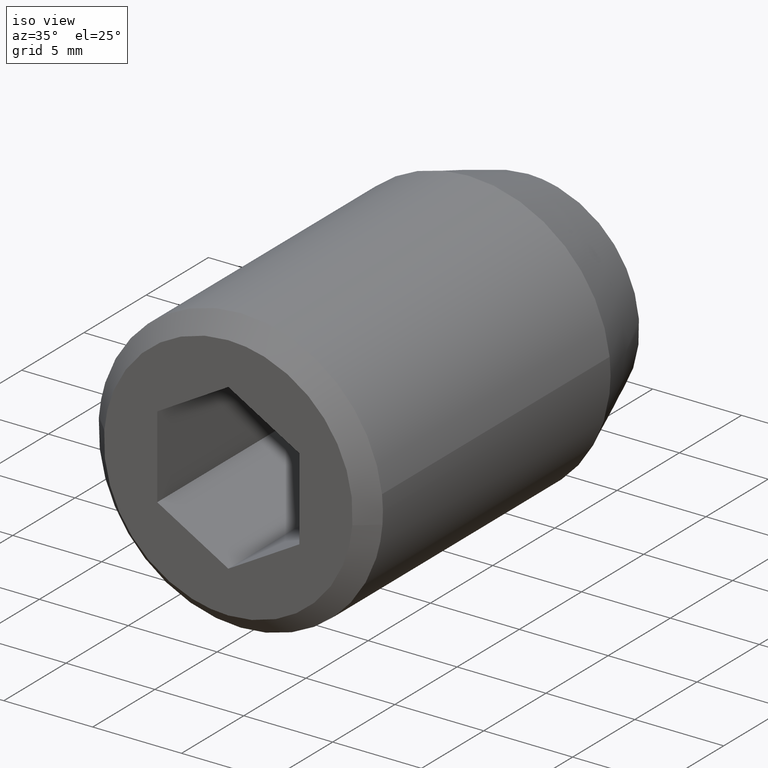
[diagram: clean part render]
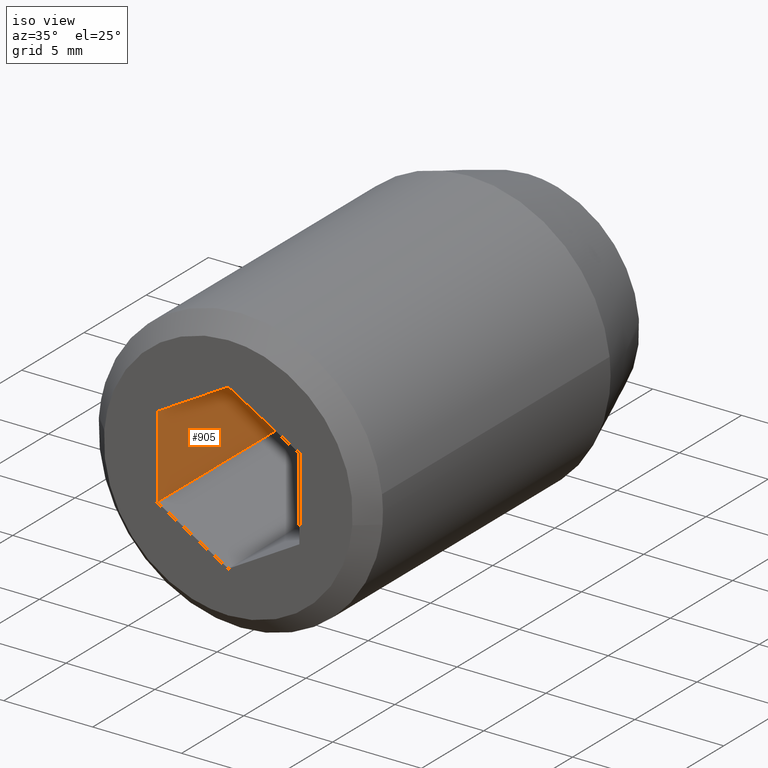
[diagram: same view with one face highlighted and labeled with its STEP entity id]
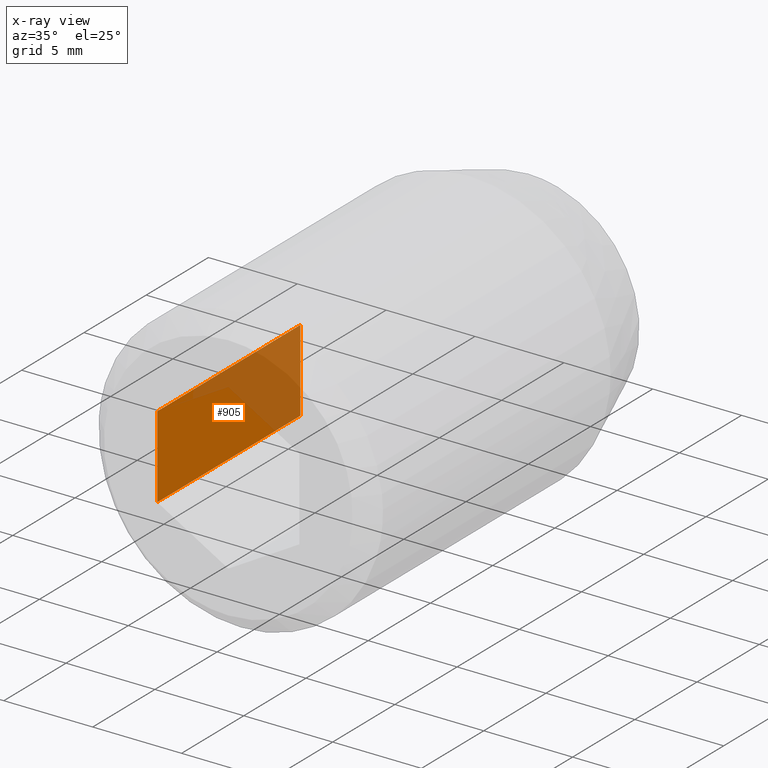
[diagram: x-ray of the same camera — body ghosted, the highlighted face saturated]
A machine part, iso view. The second image highlights one B-rep face of the part: STEP entity #905.
The next image is the same camera in x-ray: the body ghosted, the highlighted face saturated — about 41% of this face is hidden behind the body in this view.
In plain terms, the highlighted face is a freeform B-spline surface patch.
Its self-contained STEP definition (entity closure, byte-faithful):
#729=CARTESIAN_POINT('',(-4.0,-12.600000000000000,2.309401000000000));
#730=VERTEX_POINT('',#729);
#731=CARTESIAN_POINT('',(-4.0,-12.600000000000000,-2.309401000000000));
#732=VERTEX_POINT('',#731);
#733=CARTESIAN_POINT('',(-4.0,-12.600000000000000,2.309401000000000));
#734=CARTESIAN_POINT('',(-4.0,-12.600000000000000,-2.309401000000000));
#735=QUASI_UNIFORM_CURVE('',1,(#733,#734),.UNSPECIFIED.,.F.,.U.);
#736=EDGE_CURVE('',#730,#732,#735,.T.);
#781=CARTESIAN_POINT('',(-4.0,-24.100000000000001,2.309401000000000));
#782=VERTEX_POINT('',#781);
#788=CARTESIAN_POINT('',(-4.0,-12.600000000000000,2.309401000000000));
#789=CARTESIAN_POINT('',(-4.0,-24.100000000000001,2.309401000000000));
#790=QUASI_UNIFORM_CURVE('',1,(#788,#789),.UNSPECIFIED.,.F.,.U.);
#791=EDGE_CURVE('',#730,#782,#790,.T.);
#873=CARTESIAN_POINT('',(-4.0,-24.100000000000001,-2.309401000000000));
#874=VERTEX_POINT('',#873);
#882=CARTESIAN_POINT('',(-4.0,-12.600000000000000,-2.309401000000000));
#883=CARTESIAN_POINT('',(-4.0,-24.100000000000001,-2.309401000000000));
#884=QUASI_UNIFORM_CURVE('',1,(#882,#883),.UNSPECIFIED.,.F.,.U.);
#885=EDGE_CURVE('',#732,#874,#884,.T.);
#890=CARTESIAN_POINT('',(-4.0,-24.674425368439781,-2.540110194305875));
#891=CARTESIAN_POINT('',(-4.0,-24.674425368439781,2.540110276896491));
#892=CARTESIAN_POINT('',(-4.0,-12.025575556922330,-2.540110194305875));
#893=CARTESIAN_POINT('',(-4.0,-12.025575556922330,2.540110276896491));
#894=B_SPLINE_SURFACE_WITH_KNOTS('',1,1,((#890,#892),(#891,#893)),.UNSPECIFIED.,.F.,.F.,.U.,(2,2),(2,2),(0.0,5.080220471202366),(0.0,12.648849811517451),.UNSPECIFIED.);
#895=CARTESIAN_POINT('',(-4.0,-24.100000000000001,2.309401000000000));
#896=CARTESIAN_POINT('',(-4.0,-24.100000000000001,-2.309401000000000));
#897=QUASI_UNIFORM_CURVE('',1,(#895,#896),.UNSPECIFIED.,.F.,.U.);
#898=EDGE_CURVE('',#782,#874,#897,.T.);
#899=ORIENTED_EDGE('',*,*,#898,.T.);
#900=ORIENTED_EDGE('',*,*,#885,.F.);
#901=ORIENTED_EDGE('',*,*,#736,.F.);
#902=ORIENTED_EDGE('',*,*,#791,.T.);
#903=EDGE_LOOP('',(#899,#900,#901,#902));
#904=FACE_OUTER_BOUND('',#903,.T.);
#905=ADVANCED_FACE('',(#904),#894,.F.);